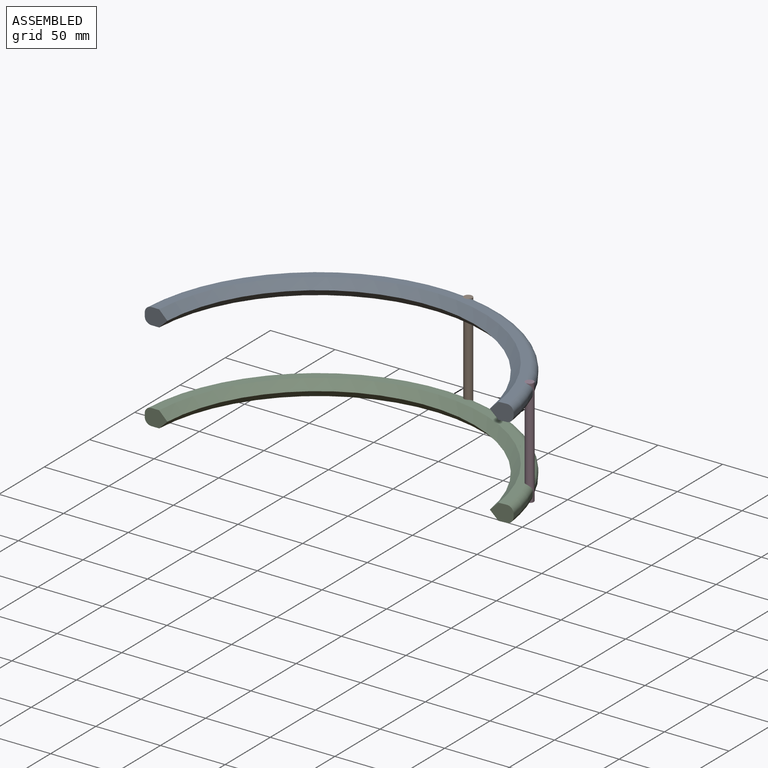
[diagram: assembled view]
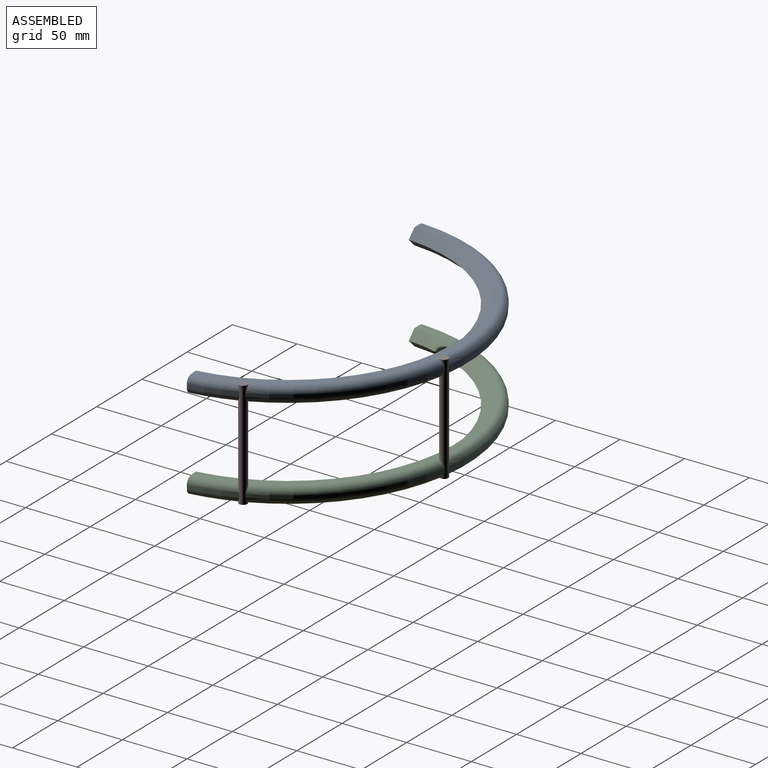
[diagram: assembled view, second angle]
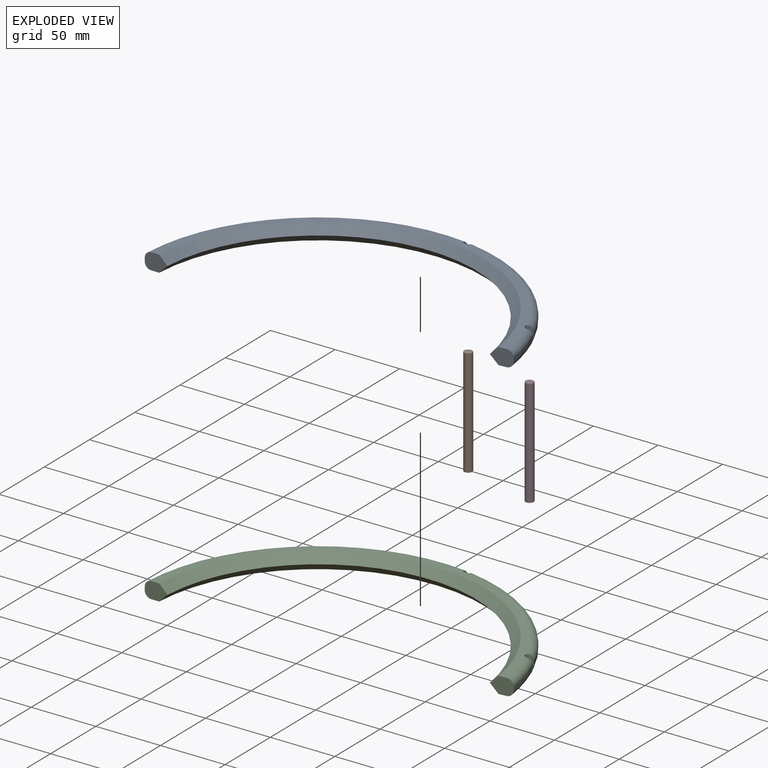
[diagram: exploded view]
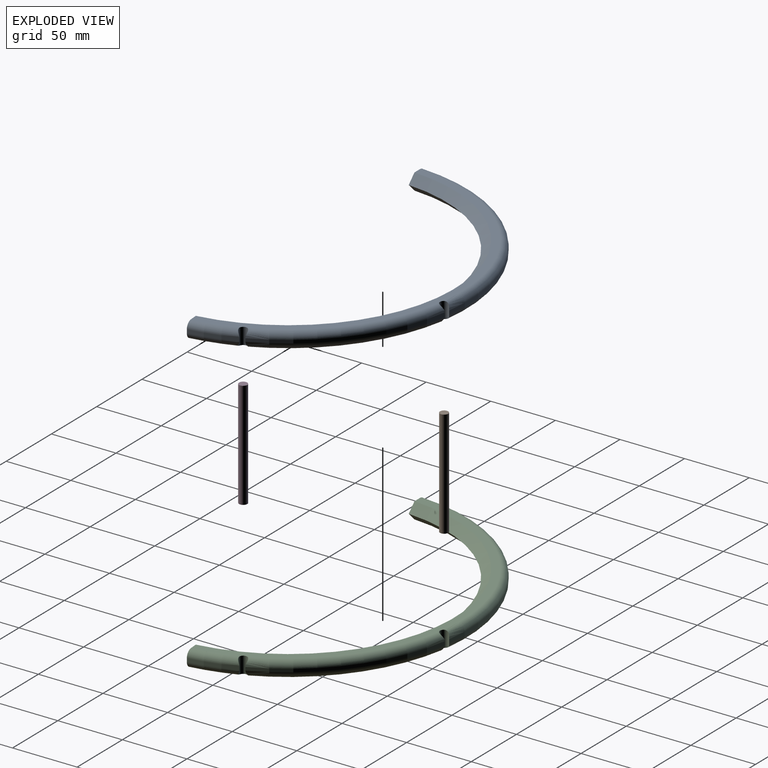
[diagram: exploded view, second angle]
ASSEMBLY  parts=4 mates=7
PART A: 17 faces, bbox 291.2x139.2x12.7 mm
  f0: torus R=134.62mm, axis (0,0,1), area 1817.5mm2, adj f8,f9,f10,f16
  f1: torus R=134.62mm, axis (0,0,1), area 1073.2mm2, adj f2,f10,f15,f16
  f2: cylinder r=139.7mm len=101.02mm, axis (0,0,-1), area 350mm2, adj f1,f3,f15,f16
  f3: torus R=134.62mm, axis (0,0,1), area 1073.2mm2, adj f2,f11,f15,f16
  f4: cylinder r=139.7mm len=34.63mm, axis (0,0,-1), area 90.4mm2, adj f5,f6,f7,f15
  f5: torus R=134.62mm, axis (0,0,1), area 273.4mm2, adj f4,f7,f11,f15
  f6: torus R=134.62mm, axis (0,0,1), area 273.4mm2, adj f4,f7,f10,f15
  f7: plane 17.49x12.71mm, normal (0.04,-1,0), area 170.7mm2, adj f4,f5,f6,f10,f11,f13,f14
  f8: cylinder r=139.7mm len=164.25mm, axis (0,0,-1), area 588.5mm2, adj f0,f9,f12,f16
  f9: plane 17.49x12.71mm, normal (-0.04,-1,0), area 170.7mm2, adj f0,f8,f10,f11,f12,f13,f14
  f10: plane 268.01x121.99mm, normal (0,0,1), area 2336.9mm2, adj f0,f1,f6,f7,f9,f13,f15,f16
  f11: plane 268.01x121.99mm, normal (0,0,-1), area 2336.9mm2, adj f3,f5,f7,f9,f12,f14,f15,f16
  f12: torus R=134.62mm, axis (0,0,1), area 1817.5mm2, adj f8,f9,f11,f16
  f13: cone r=122.24mm half-angle=45deg, axis (0,0,1), area 3312.9mm2, adj f7,f9,f10,f14
  f14: cone r=128.59mm half-angle=45deg, axis (0,0,-1), area 3312.9mm2, adj f7,f9,f11,f13
  f15: cylinder r=3.17mm len=12.7mm, axis (0,0,1), area 173.6mm2, adj f1,f2,f3,f4,f5,f6,f10,f11
  f16: cylinder r=3.17mm len=12.7mm, axis (0,0,1), area 173.6mm2, adj f0,f1,f2,f3,f8,f10,f11,f12
PART B: 3 faces, bbox 6.4x6.4x83.3 mm
  f0: cylinder r=3.17mm len=83.31mm, axis (0,0,-1), area 1662mm2, adj f1,f2
  f1: plane 6.35x6.35mm, normal (0,0,1), area 31.7mm2, adj f0
  f2: plane 6.35x6.35mm, normal (0,0,-1), area 31.7mm2, adj f0
PART C: same geometry as A
PART D: same geometry as B
PLACE A rot(axis=(0,0,1),2.2deg) t=(24.32,-118.68,18)mm
PLACE B rot(axis=(0,0,1),2.2deg) t=(209.46,73.7,-52.62)mm
PLACE C rot(axis=(0,0,1),2.2deg) t=(24.32,-118.68,-52.62)mm
PLACE D rot(axis=(0,0,1),2.2deg) t=(314.4,-8.33,-52.62)mm
MATE planar D.f0 <-> C.f11  axis (0,0,-1) through (186.05,-36.25,-52.62)mm
MATE cylindrical B.f0 <-> A.f16  axis (0,0,1) through (81.11,45.77,30.7)mm
MATE planar B.f0 <-> A.f10  axis (0,0,1) through (81.11,45.77,30.7)mm
MATE cylindrical D.f0 <-> C.f15  axis (0,0,-1) through (186.05,-36.25,-52.62)mm
MATE planar B.f0 <-> C.f11  axis (0,0,-1) through (81.11,45.77,-52.62)mm
MATE cylindrical D.f0 <-> A.f15  axis (0,0,1) through (186.05,-36.25,30.7)mm
MATE cylindrical B.f0 <-> C.f16  axis (0,0,-1) through (81.11,45.77,-52.62)mm
